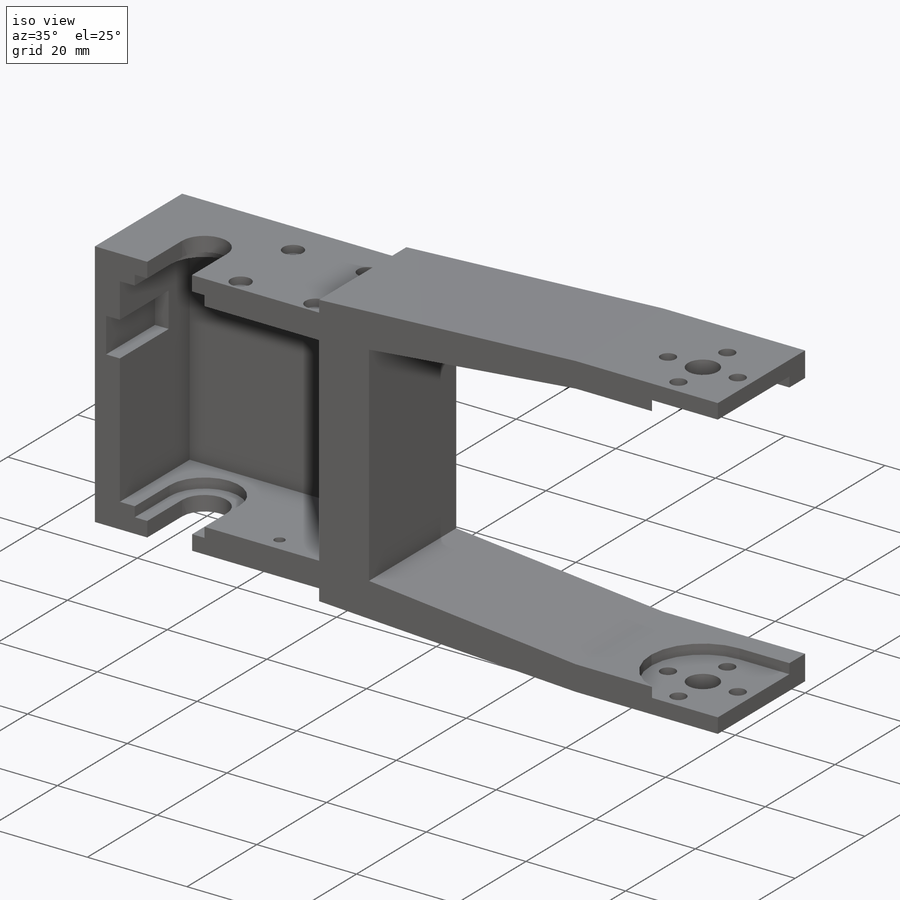
[diagram: iso view]
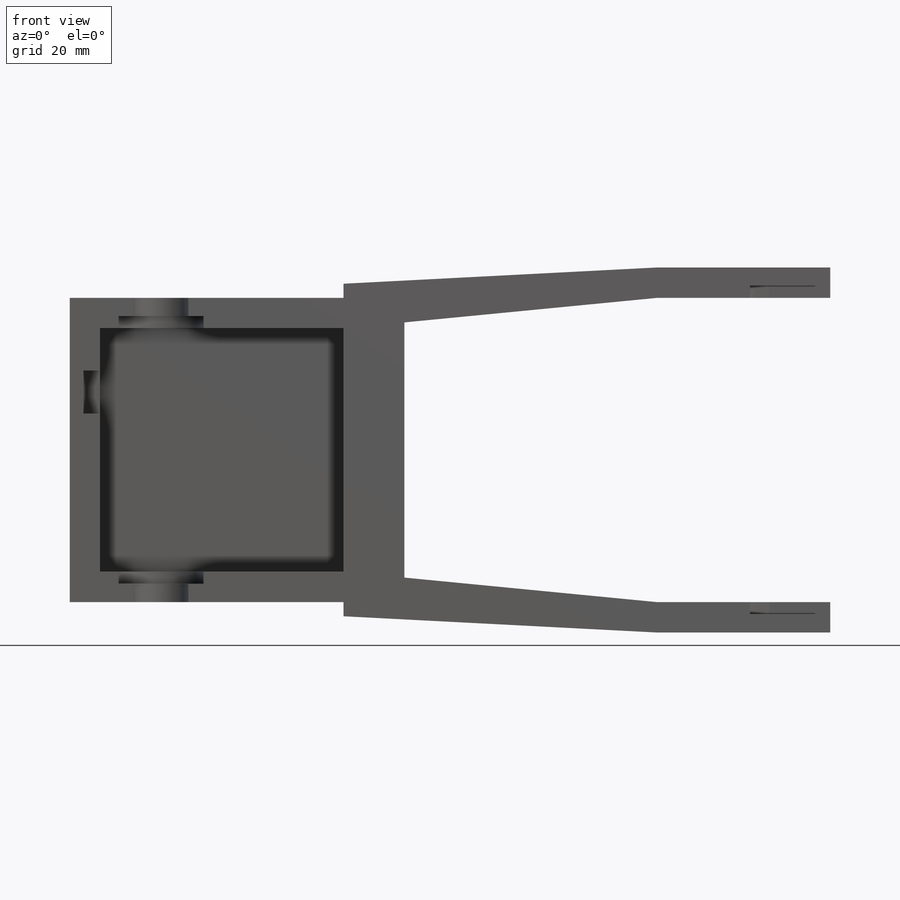
[diagram: front view]
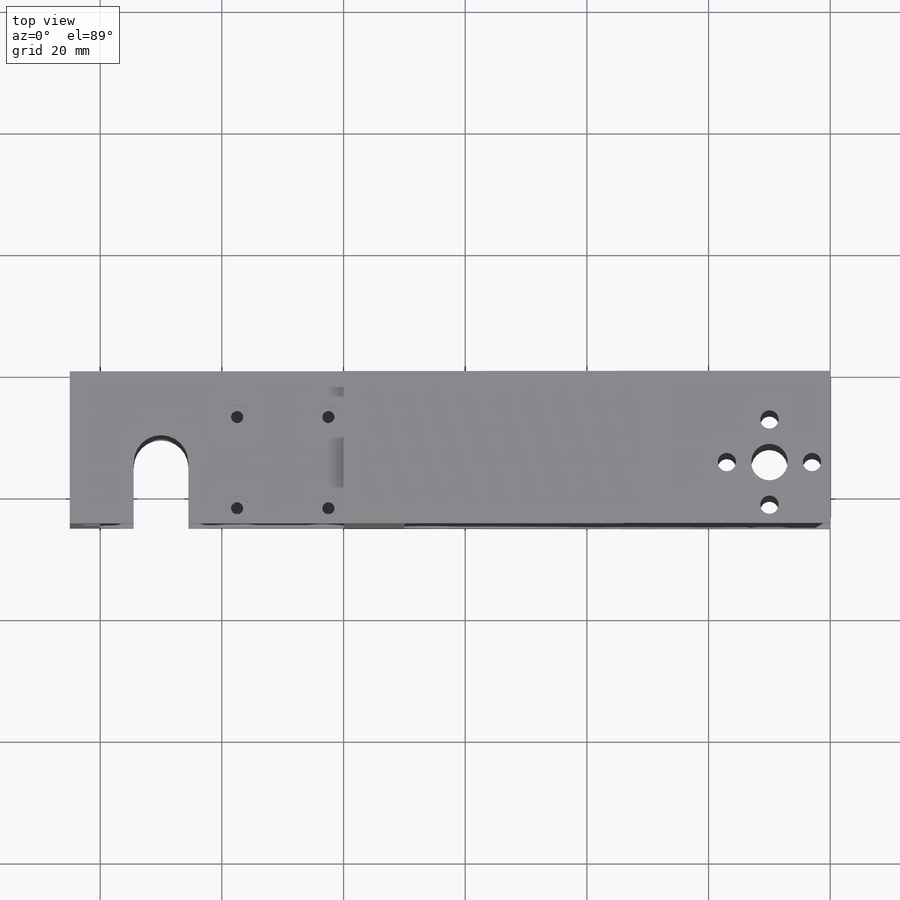
[diagram: top view]
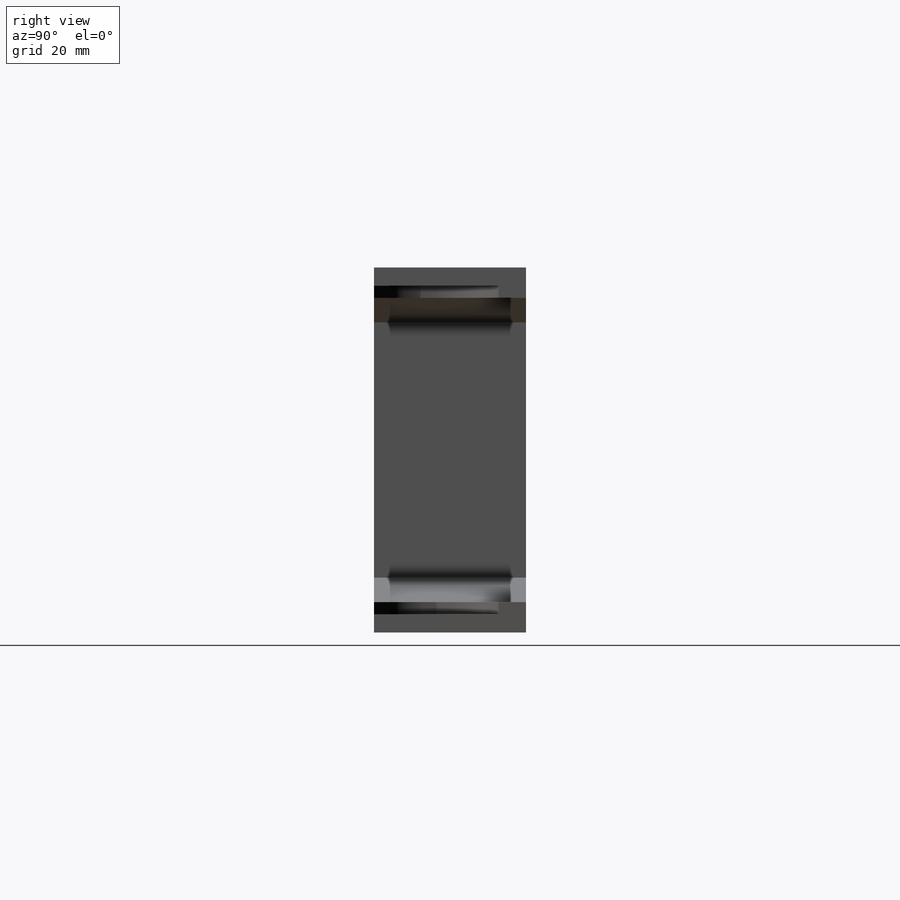
[diagram: right view]
SOLIDWORKS PART (.sldprt)
format: sldprt  version: not decoded by parser v0  size: 475,136 bytes
history: native  units: mm
features: sketch x14, cut_extrude x12, plane x3, material x1, extrude x1 (+10 scaffold rows collapsed)
feature tree (41):
  scaffold x10  (default folders/planes/origin — collapsed)
  material  "Material <sin especificar>"
  plane  "Alzado"
  plane  "Planta"
  plane  "Vista lateral"
  sketch  "Croquis3"  dims[D1=10.0mm]
  extrude  "Saliente-Extruir2"  Depth=25mm
  sketch  "Croquis4"  dims[D1=40.0mm]
  cut_extrude  "Cortar-Extruir1"  Depth=20mm
  sketch  "Croquis5"  dims[D1=10.0mm]
  cut_extrude  "Cortar-Extruir2"  Depth=2mm
  sketch  "Croquis6"  dims[D1=~4.576095mm]
  cut_extrude  "Cortar-Extruir3"  [1 undecoded]
  sketch  "Croquis7"  dims[D1=10.0mm]
  cut_extrude  "Cortar-Extruir4"  [1 undecoded]
  sketch  "Croquis8"  dims[D1=7.0mm]
  sketch  "Croquis9"  dims[c1.D1=~5.564416mm c1.D2=2.5mm c2.D1=10.0mm c3.D1=4.0]
  cut_extrude  "Cortar-Extruir6"  Depth=61mm
  sketch  "Croquis10"  dims[D1=~20.12638mm]
  cut_extrude  "Cortar-Extruir7"  Depth=2mm
  sketch  "Croquis11"
  cut_extrude  "Cortar-Extruir8"  Depth=2mm
  sketch  "Croquis13"  dims[D1=17.5mm]
  cut_extrude  "Cortar-Extruir9"  Depth=70mm
  sketch  "Croquis14"  dims[D1=10.0mm]
  cut_extrude  "Cortar-Extruir10"  Depth=70mm
  sketch  "Croquis15"  dims[D1=~5.800236mm]
  cut_extrude  "Cortar-Extruir11"  Depth=1.5mm
  sketch  "Croquis16"  dims[D1=~3.712507mm]
  cut_extrude  "Cortar-Extruir12"  Depth=1.5mm
  sketch  "Croquis18"  dims[D1=3.0mm]
  cut_extrude  "Cortar-Extruir13"  Depth=14mm
decode coverage: 24 of 27 modeling features carry decoded parameters
note: ~ marks probable driven/reference dimensions
note: 2 parameter values undecoded
note: suppression state not decoded; provenance and decode notes live in map.json
